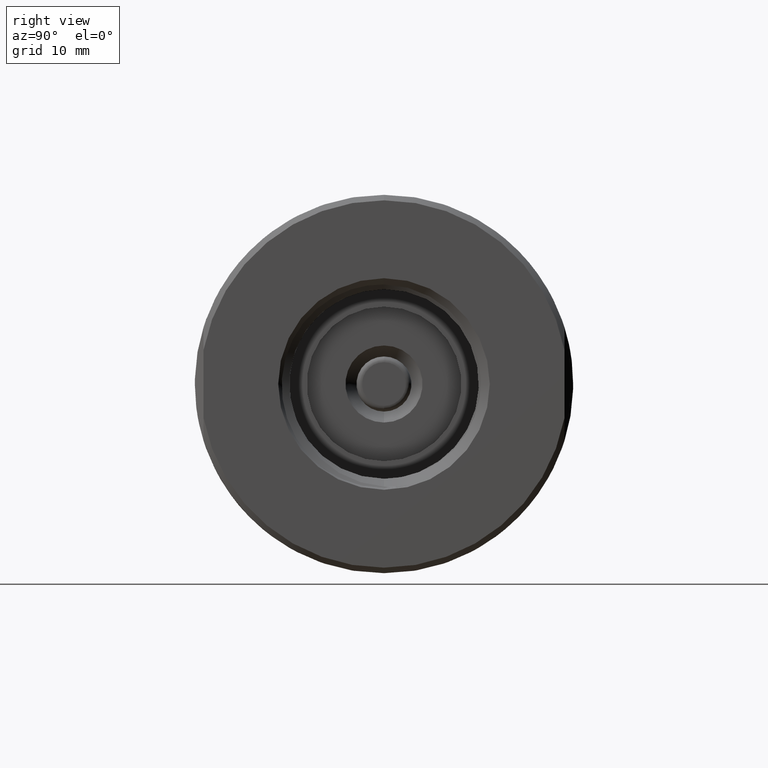
[diagram: clean part render]
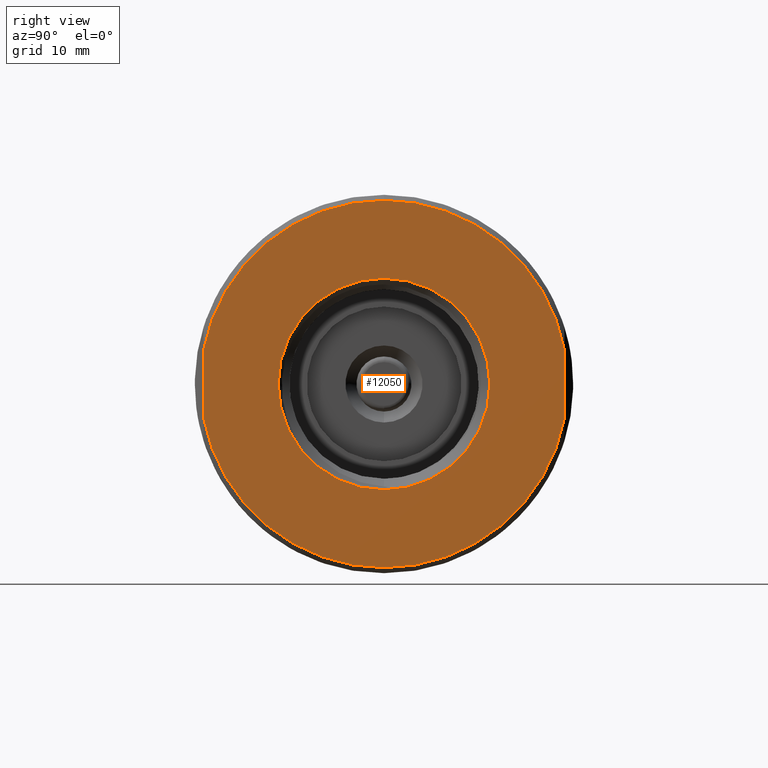
[diagram: same view with one face highlighted and labeled with its STEP entity id]
A machine part, right view. The second image highlights one B-rep face of the part: STEP entity #12050.
In plain terms, the highlighted planar face has unit normal (1, 0, 0).
Its self-contained STEP definition (entity closure, byte-faithful):
#439 = ORIENTED_EDGE ( 'NONE', *, *, #11589, .F. ) ;
#764 = VERTEX_POINT ( 'NONE', #11171 ) ;
#880 = DIRECTION ( 'NONE',  ( 0.0000000000000000000, 0.0000000000000000000, 1.000000000000000000 ) ) ;
#1447 = CARTESIAN_POINT ( 'NONE',  ( 1.343750000000000222, -0.6560499999999999110, -0.6875499999999999945 ) ) ;
#1512 = FACE_OUTER_BOUND ( 'NONE', #2774, .T. ) ;
#1515 = DIRECTION ( 'NONE',  ( -0.0000000000000000000, -0.0000000000000000000, 1.000000000000000000 ) ) ;
#1635 = DIRECTION ( 'NONE',  ( 0.0000000000000000000, 0.0000000000000000000, -1.000000000000000000 ) ) ;
#1997 = EDGE_CURVE ( 'NONE', #764, #6635, #4098, .T. ) ;
#2133 = CARTESIAN_POINT ( 'NONE',  ( 1.343750000000000222, 0.0000000000000000000, 0.6675499999999999767 ) ) ;
#2367 = CARTESIAN_POINT ( 'NONE',  ( 1.343750000000000444, 4.709149644846310570E-17, 0.3845312500000003242 ) ) ;
#2437 = FACE_BOUND ( 'NONE', #7921, .T. ) ;
#2477 = DIRECTION ( 'NONE',  ( 0.0000000000000000000, 0.0000000000000000000, 1.000000000000000000 ) ) ;
#2724 = VERTEX_POINT ( 'NONE', #6665 ) ;
#2774 = EDGE_LOOP ( 'NONE', ( #10387, #8640, #4244, #12163, #439 ) ) ;
#2858 = CIRCLE ( 'NONE', #9804, 0.6675499999999999767 ) ;
#3058 = EDGE_CURVE ( 'NONE', #6635, #764, #6831, .T. ) ;
#3099 = DIRECTION ( 'NONE',  ( 0.0000000000000000000, 0.0000000000000000000, 1.000000000000000000 ) ) ;
#3137 = CARTESIAN_POINT ( 'NONE',  ( 1.343750000000000222, -0.6560499999999999110, 0.1233750379939151792 ) ) ;
#3367 = EDGE_CURVE ( 'NONE', #7247, #4825, #7022, .T. ) ;
#3746 = ORIENTED_EDGE ( 'NONE', *, *, #1997, .T. ) ;
#4098 = CIRCLE ( 'NONE', #7093, 0.3845312500000003242 ) ;
#4244 = ORIENTED_EDGE ( 'NONE', *, *, #3367, .F. ) ;
#4629 = CARTESIAN_POINT ( 'NONE',  ( 1.343750000000000222, 0.6560499999999999110, -0.6875499999999999945 ) ) ;
#4638 = AXIS2_PLACEMENT_3D ( 'NONE', #9794, #10674, #5174 ) ;
#4825 = VERTEX_POINT ( 'NONE', #2133 ) ;
#5174 = DIRECTION ( 'NONE',  ( 0.0000000000000000000, 0.0000000000000000000, 1.000000000000000000 ) ) ;
#5440 = DIRECTION ( 'NONE',  ( -0.0000000000000000000, -0.0000000000000000000, 1.000000000000000000 ) ) ;
#5800 = VECTOR ( 'NONE', #5440, 39.37007874015748143 ) ;
#6048 = LINE ( 'NONE', #1447, #10598 ) ;
#6165 = PLANE ( 'NONE',  #6441 ) ;
#6384 = CARTESIAN_POINT ( 'NONE',  ( 1.343750000000000222, 0.6560499999999999110, -0.1233750379939151792 ) ) ;
#6422 = CIRCLE ( 'NONE', #7820, 0.6675499999999999767 ) ;
#6441 = AXIS2_PLACEMENT_3D ( 'NONE', #10090, #10220, #1635 ) ;
#6635 = VERTEX_POINT ( 'NONE', #2367 ) ;
#6665 = CARTESIAN_POINT ( 'NONE',  ( 1.343750000000000222, -0.6560499999999999110, -0.1233750379939151931 ) ) ;
#6831 = CIRCLE ( 'NONE', #8424, 0.3845312500000003242 ) ;
#7022 = CIRCLE ( 'NONE', #4638, 0.6675499999999999767 ) ;
#7093 = AXIS2_PLACEMENT_3D ( 'NONE', #9942, #9080, #2477 ) ;
#7247 = VERTEX_POINT ( 'NONE', #3137 ) ;
#7333 = ORIENTED_EDGE ( 'NONE', *, *, #3058, .T. ) ;
#7439 = LINE ( 'NONE', #4629, #5800 ) ;
#7820 = AXIS2_PLACEMENT_3D ( 'NONE', #8889, #7837, #3099 ) ;
#7837 = DIRECTION ( 'NONE',  ( -1.000000000000000000, -0.0000000000000000000, -0.0000000000000000000 ) ) ;
#7921 = EDGE_LOOP ( 'NONE', ( #3746, #7333 ) ) ;
#7941 = VERTEX_POINT ( 'NONE', #6384 ) ;
#8188 = DIRECTION ( 'NONE',  ( -1.000000000000000000, -0.0000000000000000000, -0.0000000000000000000 ) ) ;
#8255 = DIRECTION ( 'NONE',  ( 0.0000000000000000000, 0.0000000000000000000, 1.000000000000000000 ) ) ;
#8424 = AXIS2_PLACEMENT_3D ( 'NONE', #10244, #8188, #8255 ) ;
#8470 = DIRECTION ( 'NONE',  ( -1.000000000000000000, -0.0000000000000000000, -0.0000000000000000000 ) ) ;
#8542 = EDGE_CURVE ( 'NONE', #7941, #12011, #7439, .T. ) ;
#8640 = ORIENTED_EDGE ( 'NONE', *, *, #9936, .F. ) ;
#8889 = CARTESIAN_POINT ( 'NONE',  ( 1.343750000000000222, 0.0000000000000000000, 0.0000000000000000000 ) ) ;
#8968 = CARTESIAN_POINT ( 'NONE',  ( 1.343750000000000222, 0.6560499999999999110, 0.1233750379939151931 ) ) ;
#9080 = DIRECTION ( 'NONE',  ( -1.000000000000000000, -0.0000000000000000000, -0.0000000000000000000 ) ) ;
#9402 = CARTESIAN_POINT ( 'NONE',  ( 1.343750000000000222, 0.0000000000000000000, 0.0000000000000000000 ) ) ;
#9794 = CARTESIAN_POINT ( 'NONE',  ( 1.343750000000000222, 0.0000000000000000000, 0.0000000000000000000 ) ) ;
#9804 = AXIS2_PLACEMENT_3D ( 'NONE', #9402, #8470, #880 ) ;
#9936 = EDGE_CURVE ( 'NONE', #4825, #12011, #6422, .T. ) ;
#9942 = CARTESIAN_POINT ( 'NONE',  ( 1.343750000000000444, 0.0000000000000000000, 0.0000000000000000000 ) ) ;
#10090 = CARTESIAN_POINT ( 'NONE',  ( 1.343750000000000222, 1.297059202433181473E-15, 0.0000000000000000000 ) ) ;
#10220 = DIRECTION ( 'NONE',  ( 1.000000000000000000, 0.0000000000000000000, 0.0000000000000000000 ) ) ;
#10226 = EDGE_CURVE ( 'NONE', #2724, #7247, #6048, .T. ) ;
#10244 = CARTESIAN_POINT ( 'NONE',  ( 1.343750000000000444, 0.0000000000000000000, 0.0000000000000000000 ) ) ;
#10387 = ORIENTED_EDGE ( 'NONE', *, *, #8542, .T. ) ;
#10598 = VECTOR ( 'NONE', #1515, 39.37007874015748143 ) ;
#10674 = DIRECTION ( 'NONE',  ( -1.000000000000000000, -0.0000000000000000000, -0.0000000000000000000 ) ) ;
#11171 = CARTESIAN_POINT ( 'NONE',  ( 1.343750000000000444, 0.0000000000000000000, -0.3845312500000003242 ) ) ;
#11589 = EDGE_CURVE ( 'NONE', #7941, #2724, #2858, .T. ) ;
#12011 = VERTEX_POINT ( 'NONE', #8968 ) ;
#12050 = ADVANCED_FACE ( 'NONE', ( #1512, #2437 ), #6165, .T. ) ;
#12163 = ORIENTED_EDGE ( 'NONE', *, *, #10226, .F. ) ;